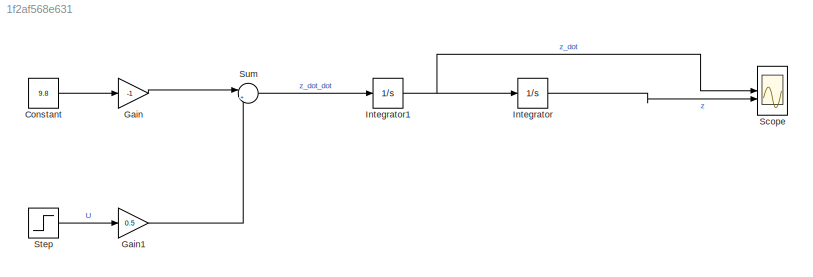
MODEL slx_1f2af568e631
KIND model
CONFIG AbsTol = auto
CONFIG EnableMultiTasking = off
CONFIG FixedStep = auto
CONFIG MaxStep = auto
CONFIG MinStep = auto
CONFIG RelTol = 1e-3
CONFIG SampleTimeConstraint = Unconstrained
CONFIG SolverName = VariableStepAuto
CONFIG StartTime = 0.0
CONFIG StopTime = 10.0
BLOCK [Constant] Constant
  Value = 9.8
BLOCK [Gain] Gain
  Gain = -1
BLOCK [Gain] Gain1
  Gain = 0.5
BLOCK [Integrator] Integrator
  InitialCondition = 5
BLOCK [Integrator] Integrator1
BLOCK [Scope] Scope
  Floating = off
  NumInputPorts = 2
  ScopeSpecificationString = Simulink.scopes.TimeScopeBlockCfg('CurrentConfiguration', extmgr.ConfigurationSet(extmgr.Configuration('Core','General UI',true),extmgr.Configuration('Core','Source UI',true),extmgr.Configuration('Sources','WiredSimulink',true),extmgr.Configuration('Visuals','Time Domain',true,'SerializedDisplays',{struct('MinYLimReal','-104.7375','MaxYLimReal','11.6375','YLabelReal','','MinYLimMag',' 0.00000','Ma...<+1362ch>
BLOCK [Step] Step
  After = 19.6
  SampleTime = 0
BLOCK [Sum] Sum
  Inputs = |++
LINE Constant:1 -> Gain:1
LINE Gain1:1 -> Sum:2
LINE Gain:1 -> Sum:1
NET Integrator1:1 -> Integrator:1, Scope:1
LINE Integrator:1 -> Scope:2
LINE Step:1 -> Gain1:1
LINE Sum:1 -> Integrator1:1
note: NET lines group one-source signal fan-out (src -> all destinations, sorted); 1:1 wires keep LINE
